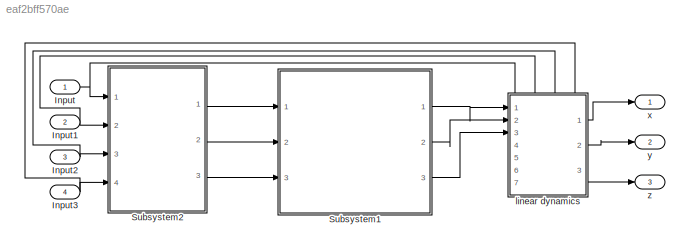
MODEL slx_eaf2bff570ae
KIND model
CONFIG AbsTol = auto
CONFIG EnableMultiTasking = off
CONFIG FixedStep = auto
CONFIG MaxStep = auto
CONFIG MinStep = auto
CONFIG RelTol = 1e-3
CONFIG SampleTimeConstraint = Unconstrained
CONFIG SolverName = VariableStepAuto
CONFIG StartTime = 0.0
CONFIG StopTime = 10.0
BLOCK [Inport] Input
BLOCK [Inport] Input1
  Port = 2
BLOCK [Inport] Input2
  Port = 3
BLOCK [Inport] Input3
  Port = 4
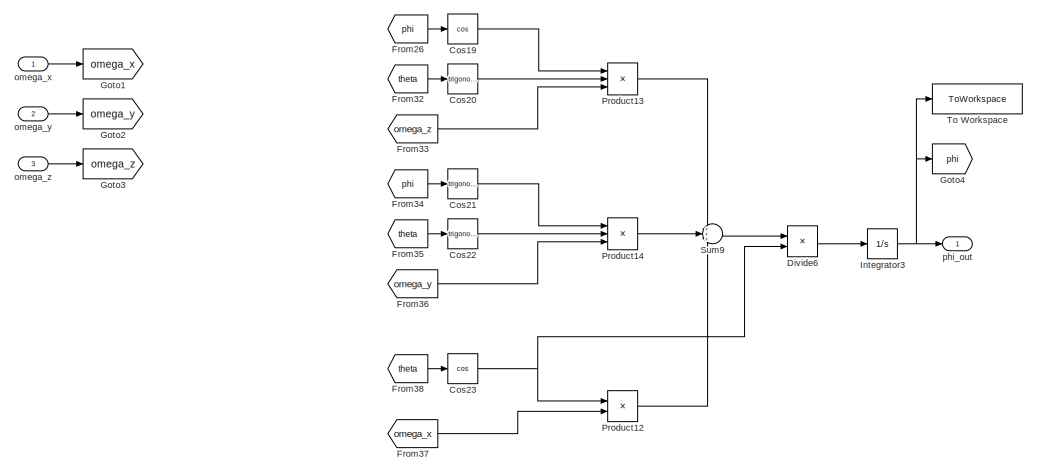
[diagram: Subsystem1 - part 1/2, full width, top band]
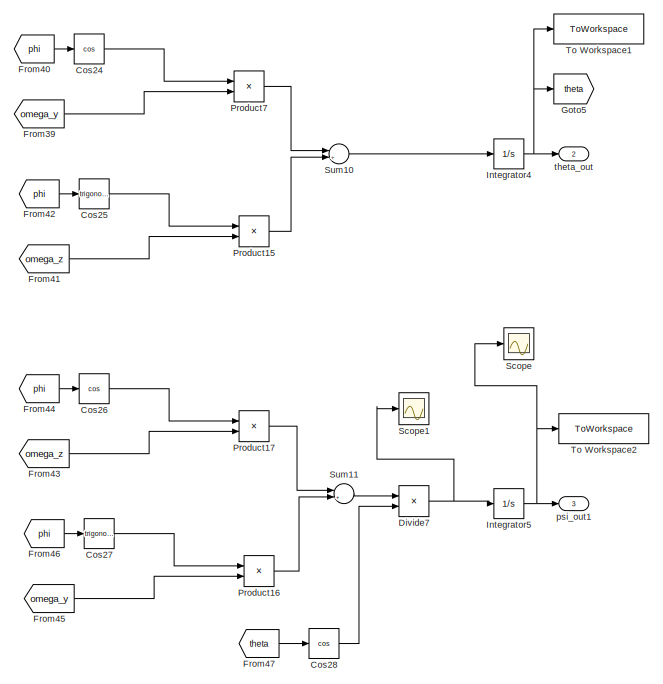
[diagram: Subsystem1 - part 2/2, bottom right region]
BLOCK [SubSystem] Subsystem1
  Ports = [3, 3]
  RequestExecContextInheritance = off
BLOCK [Trigonometry] Subsystem1/Cos19
  Operator = cos
  Ports = [1, 1]
BLOCK [Trigonometry] Subsystem1/Cos20
  Ports = [1, 1]
BLOCK [Trigonometry] Subsystem1/Cos21
  Ports = [1, 1]
BLOCK [Trigonometry] Subsystem1/Cos22
  Ports = [1, 1]
BLOCK [Trigonometry] Subsystem1/Cos23
  Operator = cos
  Ports = [1, 1]
BLOCK [Trigonometry] Subsystem1/Cos24
  Operator = cos
  Ports = [1, 1]
BLOCK [Trigonometry] Subsystem1/Cos25
  Ports = [1, 1]
BLOCK [Trigonometry] Subsystem1/Cos26
  Operator = cos
  Ports = [1, 1]
BLOCK [Trigonometry] Subsystem1/Cos27
  Ports = [1, 1]
BLOCK [Trigonometry] Subsystem1/Cos28
  Operator = cos
  Ports = [1, 1]
BLOCK [Product] Subsystem1/Divide6
  Inputs = */
  Ports = [2, 1]
BLOCK [Product] Subsystem1/Divide7
  Inputs = */
  Ports = [2, 1]
BLOCK [From] Subsystem1/From26
  GotoTag = phi
BLOCK [From] Subsystem1/From32
  GotoTag = theta
BLOCK [From] Subsystem1/From33
  GotoTag = omega_z
BLOCK [From] Subsystem1/From34
  GotoTag = phi
BLOCK [From] Subsystem1/From35
  GotoTag = theta
BLOCK [From] Subsystem1/From36
  GotoTag = omega_y
BLOCK [From] Subsystem1/From37
  GotoTag = omega_x
BLOCK [From] Subsystem1/From38
  GotoTag = theta
BLOCK [From] Subsystem1/From39
  GotoTag = omega_y
BLOCK [From] Subsystem1/From40
  GotoTag = phi
BLOCK [From] Subsystem1/From41
  GotoTag = omega_z
BLOCK [From] Subsystem1/From42
  GotoTag = phi
BLOCK [From] Subsystem1/From43
  GotoTag = omega_z
BLOCK [From] Subsystem1/From44
  GotoTag = phi
BLOCK [From] Subsystem1/From45
  GotoTag = omega_y
BLOCK [From] Subsystem1/From46
  GotoTag = phi
BLOCK [From] Subsystem1/From47
  GotoTag = theta
BLOCK [Goto] Subsystem1/Goto1
  GotoTag = omega_x
BLOCK [Goto] Subsystem1/Goto2
  GotoTag = omega_y
BLOCK [Goto] Subsystem1/Goto3
  GotoTag = omega_z
BLOCK [Goto] Subsystem1/Goto4
  GotoTag = phi
BLOCK [Goto] Subsystem1/Goto5
  GotoTag = theta
BLOCK [Integrator] Subsystem1/Integrator3
  Ports = [1, 1]
BLOCK [Integrator] Subsystem1/Integrator4
  Ports = [1, 1]
BLOCK [Integrator] Subsystem1/Integrator5
  Ports = [1, 1]
BLOCK [Product] Subsystem1/Product12
  Ports = [2, 1]
BLOCK [Product] Subsystem1/Product13
  Inputs = 3
  Ports = [3, 1]
BLOCK [Product] Subsystem1/Product14
  Inputs = 3
  Ports = [3, 1]
BLOCK [Product] Subsystem1/Product15
  Ports = [2, 1]
BLOCK [Product] Subsystem1/Product16
  Ports = [2, 1]
BLOCK [Product] Subsystem1/Product17
  Ports = [2, 1]
BLOCK [Product] Subsystem1/Product7
  Ports = [2, 1]
BLOCK [Scope] Subsystem1/Scope
  Floating = off
  NumInputPorts = 1
  Ports = [1]
  ScopeSpecificationString = Simulink.scopes.TimeScopeBlockCfg('CurrentConfiguration', extmgr.ConfigurationSet(extmgr.Configuration('Core','General UI',true),extmgr.Configuration('Core','Source UI',true),extmgr.Configuration('Sources','WiredSimulink',true,'DataLoggingVariableName','ScopeData9'),extmgr.Configuration('Visuals','Time Domain',true,'SerializedDisplays',{struct('MinYLimReal','-124842418426.45071','MaxYLimReal','112...<+1460ch>
BLOCK [Scope] Subsystem1/Scope1
  Floating = off
  NumInputPorts = 1
  Ports = [1]
  ScopeSpecificationString = Simulink.scopes.TimeScopeBlockCfg('CurrentConfiguration', extmgr.ConfigurationSet(extmgr.Configuration('Core','General UI',true),extmgr.Configuration('Core','Source UI',true),extmgr.Configuration('Sources','WiredSimulink',true,'DataLoggingVariableName','ScopeData10'),extmgr.Configuration('Visuals','Time Domain',true,'SerializedDisplays',{struct('MinYLimReal','-24984236873.12164','MaxYLimReal','224...<+1449ch>
BLOCK [Sum] Subsystem1/Sum10
  Inputs = |+-|
  Ports = [2, 1]
BLOCK [Sum] Subsystem1/Sum11
  Inputs = |++|
  Ports = [2, 1]
BLOCK [Sum] Subsystem1/Sum9
  Inputs = +++
  Ports = [3, 1]
BLOCK [ToWorkspace] Subsystem1/To Workspace
  FixptAsFi = on
  MaxDataPoints = inf
  Ports = [1]
  SampleTime = -1
  SaveFormat = Timeseries
  VariableName = phi_roll
BLOCK [ToWorkspace] Subsystem1/To Workspace1
  FixptAsFi = on
  MaxDataPoints = inf
  Ports = [1]
  SampleTime = -1
  SaveFormat = Timeseries
  VariableName = theta_pitch
BLOCK [ToWorkspace] Subsystem1/To Workspace2
  FixptAsFi = on
  MaxDataPoints = inf
  Ports = [1]
  SampleTime = -1
  SaveFormat = Timeseries
  VariableName = psi_yaw
BLOCK [Inport] Subsystem1/omega_x
BLOCK [Inport] Subsystem1/omega_y
  Port = 2
BLOCK [Inport] Subsystem1/omega_z
  Port = 3
BLOCK [Outport] Subsystem1/phi_out
BLOCK [Outport] Subsystem1/psi_out1
  Port = 3
BLOCK [Outport] Subsystem1/theta_out
  Port = 2
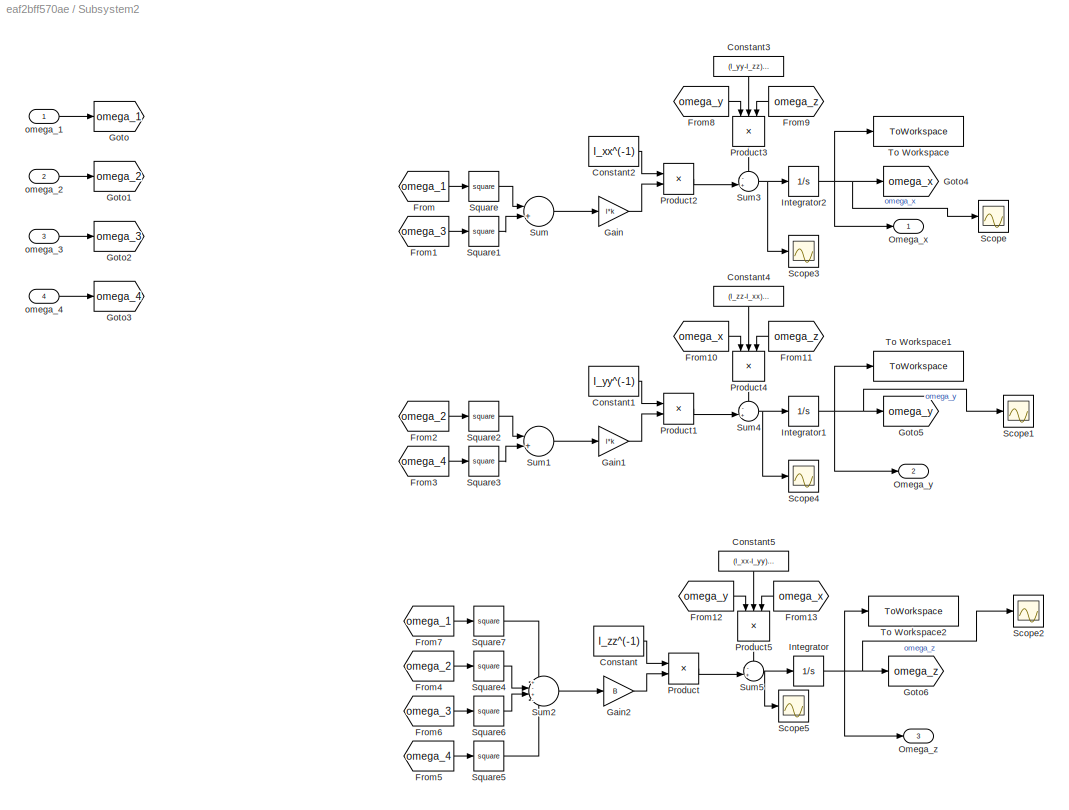
BLOCK [SubSystem] Subsystem2
  Ports = [4, 3]
  RequestExecContextInheritance = off
BLOCK [Constant] Subsystem2/Constant
  Value = I_zz^(-1)
BLOCK [Constant] Subsystem2/Constant1
  Value = I_yy^(-1)
BLOCK [Constant] Subsystem2/Constant2
  Value = I_xx^(-1)
BLOCK [Constant] Subsystem2/Constant3
  NameLocation = left
  Value = (I_yy-I_zz)/I_xx
BLOCK [Constant] Subsystem2/Constant4
  NameLocation = left
  Value = (I_zz-I_xx)/I_yy
BLOCK [Constant] Subsystem2/Constant5
  NameLocation = left
  Value = (I_xx-I_yy)/I_zz
BLOCK [From] Subsystem2/From
  GotoTag = omega_1
BLOCK [From] Subsystem2/From1
  GotoTag = omega_3
BLOCK [From] Subsystem2/From10
  GotoTag = omega_x
BLOCK [From] Subsystem2/From11
  GotoTag = omega_z
  NameLocation = top
BLOCK [From] Subsystem2/From12
  GotoTag = omega_y
BLOCK [From] Subsystem2/From13
  GotoTag = omega_x
  NameLocation = top
BLOCK [From] Subsystem2/From2
  GotoTag = omega_2
BLOCK [From] Subsystem2/From3
  GotoTag = omega_4
BLOCK [From] Subsystem2/From4
  GotoTag = omega_2
BLOCK [From] Subsystem2/From5
  GotoTag = omega_4
BLOCK [From] Subsystem2/From6
  GotoTag = omega_3
BLOCK [From] Subsystem2/From7
  GotoTag = omega_1
BLOCK [From] Subsystem2/From8
  GotoTag = omega_y
BLOCK [From] Subsystem2/From9
  GotoTag = omega_z
  NameLocation = top
BLOCK [Gain] Subsystem2/Gain
  Gain = l*k
BLOCK [Gain] Subsystem2/Gain1
  Gain = l*k
BLOCK [Gain] Subsystem2/Gain2
  Gain = B
BLOCK [Goto] Subsystem2/Goto
  GotoTag = omega_1
BLOCK [Goto] Subsystem2/Goto1
  GotoTag = omega_2
BLOCK [Goto] Subsystem2/Goto2
  GotoTag = omega_3
BLOCK [Goto] Subsystem2/Goto3
  GotoTag = omega_4
BLOCK [Goto] Subsystem2/Goto4
  GotoTag = omega_x
BLOCK [Goto] Subsystem2/Goto5
  GotoTag = omega_y
BLOCK [Goto] Subsystem2/Goto6
  GotoTag = omega_z
BLOCK [Integrator] Subsystem2/Integrator
  Ports = [1, 1]
BLOCK [Integrator] Subsystem2/Integrator1
  Ports = [1, 1]
BLOCK [Integrator] Subsystem2/Integrator2
  Ports = [1, 1]
BLOCK [Outport] Subsystem2/Omega_x
BLOCK [Outport] Subsystem2/Omega_y
  Port = 2
BLOCK [Outport] Subsystem2/Omega_z
  Port = 3
BLOCK [Product] Subsystem2/Product
  Ports = [2, 1]
BLOCK [Product] Subsystem2/Product1
  Ports = [2, 1]
BLOCK [Product] Subsystem2/Product2
  Ports = [2, 1]
BLOCK [Product] Subsystem2/Product3
  Inputs = 3
  NameLocation = left
  Ports = [3, 1]
BLOCK [Product] Subsystem2/Product4
  Inputs = 3
  NameLocation = left
  Ports = [3, 1]
BLOCK [Product] Subsystem2/Product5
  Inputs = 3
  NameLocation = left
  Ports = [3, 1]
BLOCK [Scope] Subsystem2/Scope
  Floating = off
  NumInputPorts = 1
  Ports = [1]
  ScopeSpecificationString = Simulink.scopes.TimeScopeBlockCfg('CurrentConfiguration', extmgr.ConfigurationSet(extmgr.Configuration('Core','General UI',true),extmgr.Configuration('Core','Source UI',true),extmgr.Configuration('Sources','WiredSimulink',true,'DataLoggingVariableName','ScopeData3'),extmgr.Configuration('Visuals','Time Domain',true),extmgr.Configuration('Tools','Plot Navigation',true),extmgr.Configuration('Tools',...<+40ch>
BLOCK [Scope] Subsystem2/Scope1
  Floating = off
  NumInputPorts = 1
  Ports = [1]
  ScopeSpecificationString = Simulink.scopes.TimeScopeBlockCfg('CurrentConfiguration', extmgr.ConfigurationSet(extmgr.Configuration('Core','General UI',true),extmgr.Configuration('Core','Source UI',true),extmgr.Configuration('Sources','WiredSimulink',true,'DataLoggingVariableName','ScopeData4'),extmgr.Configuration('Visuals','Time Domain',true),extmgr.Configuration('Tools','Plot Navigation',true),extmgr.Configuration('Tools',...<+40ch>
BLOCK [Scope] Subsystem2/Scope2
  Floating = off
  NumInputPorts = 1
  Ports = [1]
  ScopeSpecificationString = Simulink.scopes.TimeScopeBlockCfg('CurrentConfiguration', extmgr.ConfigurationSet(extmgr.Configuration('Core','General UI',true),extmgr.Configuration('Core','Source UI',true),extmgr.Configuration('Sources','WiredSimulink',true,'DataLoggingVariableName','ScopeData5'),extmgr.Configuration('Visuals','Time Domain',true,'SerializedDisplays',{struct('MinYLimReal','-24999999999.99994','MaxYLimReal','2249...<+1448ch>
BLOCK [Scope] Subsystem2/Scope3
  Floating = off
  NumInputPorts = 1
  Ports = [1]
  ScopeSpecificationString = Simulink.scopes.TimeScopeBlockCfg('CurrentConfiguration', extmgr.ConfigurationSet(extmgr.Configuration('Core','General UI',true),extmgr.Configuration('Core','Source UI',true),extmgr.Configuration('Sources','WiredSimulink',true,'DataLoggingVariableName','ScopeData6'),extmgr.Configuration('Visuals','Time Domain',true,'SerializedDisplays',{struct('MinYLimReal','-1.00000','MaxYLimReal','1.00000','YLab...<+1392ch>
BLOCK [Scope] Subsystem2/Scope4
  Floating = off
  NumInputPorts = 1
  Ports = [1]
  ScopeSpecificationString = Simulink.scopes.TimeScopeBlockCfg('CurrentConfiguration', extmgr.ConfigurationSet(extmgr.Configuration('Core','General UI',true),extmgr.Configuration('Core','Source UI',true),extmgr.Configuration('Sources','WiredSimulink',true,'DataLoggingVariableName','ScopeData7'),extmgr.Configuration('Visuals','Time Domain',true,'SerializedDisplays',{struct('MinYLimReal','-1.00000','MaxYLimReal','1.00000','YLab...<+1363ch>
BLOCK [Scope] Subsystem2/Scope5
  Floating = off
  NumInputPorts = 1
  Ports = [1]
  ScopeSpecificationString = Simulink.scopes.TimeScopeBlockCfg('CurrentConfiguration', extmgr.ConfigurationSet(extmgr.Configuration('Core','General UI',true),extmgr.Configuration('Core','Source UI',true),extmgr.Configuration('Sources','WiredSimulink',true,'DataLoggingVariableName','ScopeData8'),extmgr.Configuration('Visuals','Time Domain',true,'SerializedDisplays',{struct('MinYLimReal','10000000000.00000','MaxYLimReal','30000...<+1441ch>
BLOCK [Math] Subsystem2/Square
  Operator = square
  Ports = [1, 1]
BLOCK [Math] Subsystem2/Square1
  Operator = square
  Ports = [1, 1]
BLOCK [Math] Subsystem2/Square2
  Operator = square
  Ports = [1, 1]
BLOCK [Math] Subsystem2/Square3
  Operator = square
  Ports = [1, 1]
BLOCK [Math] Subsystem2/Square4
  Operator = square
  Ports = [1, 1]
BLOCK [Math] Subsystem2/Square5
  Operator = square
  Ports = [1, 1]
BLOCK [Math] Subsystem2/Square6
  Operator = square
  Ports = [1, 1]
BLOCK [Math] Subsystem2/Square7
  Operator = square
  Ports = [1, 1]
BLOCK [Sum] Subsystem2/Sum
  Inputs = |+|-|
  Ports = [2, 1]
BLOCK [Sum] Subsystem2/Sum1
  Inputs = |+|-|
  Ports = [2, 1]
BLOCK [Sum] Subsystem2/Sum2
  Inputs = +-+-
  Ports = [4, 1]
BLOCK [Sum] Subsystem2/Sum3
  Inputs = -+|
  Ports = [2, 1]
BLOCK [Sum] Subsystem2/Sum4
  Inputs = -+|
  Ports = [2, 1]
BLOCK [Sum] Subsystem2/Sum5
  Inputs = -+|
  Ports = [2, 1]
BLOCK [ToWorkspace] Subsystem2/To Workspace
  FixptAsFi = on
  MaxDataPoints = inf
  Ports = [1]
  SampleTime = -1
  SaveFormat = Timeseries
  VariableName = omegax
BLOCK [ToWorkspace] Subsystem2/To Workspace1
  FixptAsFi = on
  MaxDataPoints = inf
  Ports = [1]
  SampleTime = -1
  SaveFormat = Timeseries
  VariableName = omegay
BLOCK [ToWorkspace] Subsystem2/To Workspace2
  FixptAsFi = on
  MaxDataPoints = inf
  Ports = [1]
  SampleTime = -1
  SaveFormat = Timeseries
  VariableName = omegaz
BLOCK [Inport] Subsystem2/omega_1
BLOCK [Inport] Subsystem2/omega_2
  Port = 2
BLOCK [Inport] Subsystem2/omega_3
  Port = 3
BLOCK [Inport] Subsystem2/omega_4
  Port = 4
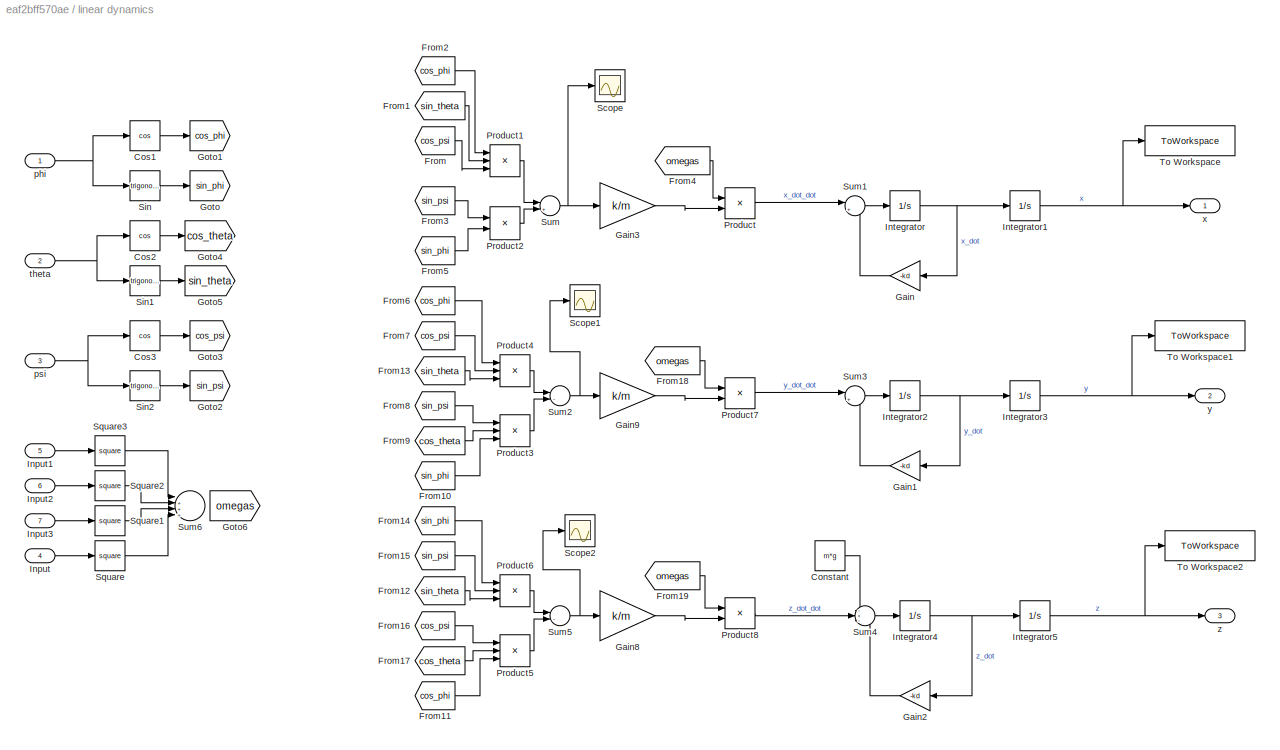
BLOCK [SubSystem] linear dynamics
  PortSchema = {"entries":[{"content":{"sides":[{"content":{"connectorIds":["In1","In2","In3"]},"type":"ConnectorPlacement.EquallySpacedRectSide","uuid":"56efaa7c-52a2-4b92-9bf3-e77850251265"},{"content":{"connectorIds":["Out1","Out2","Out3"],"side":"RIGHT"},"type":"ConnectorPlacement.EquallySpacedRectSide","uuid":"60524467-1949-4cc2-aa81-2e6d1e137057"},{"content":{"connectorIds":["In4","In5","In6","In7"],"side"...<+433ch>
  Ports = [7, 3]
  RequestExecContextInheritance = off
BLOCK [Constant] linear dynamics/Constant
  Value = m*g
BLOCK [Trigonometry] linear dynamics/Cos1
  NameLocation = top
  Operator = cos
  Ports = [1, 1]
BLOCK [Trigonometry] linear dynamics/Cos2
  Operator = cos
  Ports = [1, 1]
BLOCK [Trigonometry] linear dynamics/Cos3
  Operator = cos
  Ports = [1, 1]
BLOCK [From] linear dynamics/From
  GotoTag = cos_psi
BLOCK [From] linear dynamics/From1
  GotoTag = sin_theta
BLOCK [From] linear dynamics/From10
  GotoTag = sin_phi
BLOCK [From] linear dynamics/From11
  GotoTag = cos_phi
BLOCK [From] linear dynamics/From12
  GotoTag = sin_theta
BLOCK [From] linear dynamics/From13
  GotoTag = sin_theta
BLOCK [From] linear dynamics/From14
  GotoTag = sin_phi
BLOCK [From] linear dynamics/From15
  GotoTag = sin_psi
BLOCK [From] linear dynamics/From16
  GotoTag = cos_psi
BLOCK [From] linear dynamics/From17
  GotoTag = cos_theta
BLOCK [From] linear dynamics/From18
  GotoTag = omegas
BLOCK [From] linear dynamics/From19
  GotoTag = omegas
BLOCK [From] linear dynamics/From2
  GotoTag = cos_phi
BLOCK [From] linear dynamics/From3
  GotoTag = sin_psi
BLOCK [From] linear dynamics/From4
  GotoTag = omegas
BLOCK [From] linear dynamics/From5
  GotoTag = sin_phi
BLOCK [From] linear dynamics/From6
  GotoTag = cos_phi
BLOCK [From] linear dynamics/From7
  GotoTag = cos_psi
BLOCK [From] linear dynamics/From8
  GotoTag = sin_psi
BLOCK [From] linear dynamics/From9
  GotoTag = cos_theta
BLOCK [Gain] linear dynamics/Gain
  Gain = -kd
  NameLocation = top
BLOCK [Gain] linear dynamics/Gain1
  Gain = -kd
  NameLocation = top
BLOCK [Gain] linear dynamics/Gain2
  Gain = -kd
  NameLocation = top
BLOCK [Gain] linear dynamics/Gain3
  Gain = k/m
BLOCK [Gain] linear dynamics/Gain8
  Gain = k/m
BLOCK [Gain] linear dynamics/Gain9
  Gain = k/m
BLOCK [Goto] linear dynamics/Goto
  GotoTag = sin_phi
BLOCK [Goto] linear dynamics/Goto1
  GotoTag = cos_phi
BLOCK [Goto] linear dynamics/Goto2
  GotoTag = sin_psi
BLOCK [Goto] linear dynamics/Goto3
  GotoTag = cos_psi
BLOCK [Goto] linear dynamics/Goto4
  GotoTag = cos_theta
BLOCK [Goto] linear dynamics/Goto5
  GotoTag = sin_theta
BLOCK [Goto] linear dynamics/Goto6
  GotoTag = omegas
BLOCK [Inport] linear dynamics/Input
  Port = 4
BLOCK [Inport] linear dynamics/Input1
  Port = 5
BLOCK [Inport] linear dynamics/Input2
  Port = 6
BLOCK [Inport] linear dynamics/Input3
  Port = 7
BLOCK [Integrator] linear dynamics/Integrator
  Ports = [1, 1]
BLOCK [Integrator] linear dynamics/Integrator1
  Ports = [1, 1]
BLOCK [Integrator] linear dynamics/Integrator2
  Ports = [1, 1]
BLOCK [Integrator] linear dynamics/Integrator3
  Ports = [1, 1]
BLOCK [Integrator] linear dynamics/Integrator4
  Ports = [1, 1]
BLOCK [Integrator] linear dynamics/Integrator5
  Ports = [1, 1]
BLOCK [Product] linear dynamics/Product
  Ports = [2, 1]
BLOCK [Product] linear dynamics/Product1
  Inputs = 3
  Ports = [3, 1]
BLOCK [Product] linear dynamics/Product2
  Ports = [2, 1]
BLOCK [Product] linear dynamics/Product3
  Inputs = 3
  Ports = [3, 1]
BLOCK [Product] linear dynamics/Product4
  Inputs = 3
  Ports = [3, 1]
BLOCK [Product] linear dynamics/Product5
  Inputs = 3
  Ports = [3, 1]
BLOCK [Product] linear dynamics/Product6
  Inputs = 3
  Ports = [3, 1]
BLOCK [Product] linear dynamics/Product7
  Ports = [2, 1]
BLOCK [Product] linear dynamics/Product8
  Ports = [2, 1]
BLOCK [Scope] linear dynamics/Scope
  Floating = off
  NumInputPorts = 1
  Ports = [1]
  ScopeSpecificationString = Simulink.scopes.TimeScopeBlockCfg('CurrentConfiguration', extmgr.ConfigurationSet(extmgr.Configuration('Core','General UI',true),extmgr.Configuration('Core','Source UI',true),extmgr.Configuration('Sources','WiredSimulink',true),extmgr.Configuration('Visuals','Time Domain',true,'SerializedDisplays',{struct('MinYLimReal','-1.00000','MaxYLimReal','1.00000','YLabelReal','','MinYLimMag','0.00000','MaxY...<+1323ch>
BLOCK [Scope] linear dynamics/Scope1
  Floating = off
  NumInputPorts = 1
  Ports = [1]
  ScopeSpecificationString = Simulink.scopes.TimeScopeBlockCfg('CurrentConfiguration', extmgr.ConfigurationSet(extmgr.Configuration('Core','General UI',true),extmgr.Configuration('Core','Source UI',true),extmgr.Configuration('Sources','WiredSimulink',true,'DataLoggingVariableName','ScopeData1'),extmgr.Configuration('Visuals','Time Domain',true),extmgr.Configuration('Tools','Plot Navigation',true),extmgr.Configuration('Tools',...<+40ch>
BLOCK [Scope] linear dynamics/Scope2
  Floating = off
  NumInputPorts = 1
  Ports = [1]
  ScopeSpecificationString = Simulink.scopes.TimeScopeBlockCfg('CurrentConfiguration', extmgr.ConfigurationSet(extmgr.Configuration('Core','General UI',true),extmgr.Configuration('Core','Source UI',true),extmgr.Configuration('Sources','WiredSimulink',true,'DataLoggingVariableName','ScopeData2'),extmgr.Configuration('Visuals','Time Domain',true),extmgr.Configuration('Tools','Plot Navigation',true),extmgr.Configuration('Tools',...<+40ch>
BLOCK [Trigonometry] linear dynamics/Sin
  Ports = [1, 1]
BLOCK [Trigonometry] linear dynamics/Sin1
  Ports = [1, 1]
BLOCK [Trigonometry] linear dynamics/Sin2
  Ports = [1, 1]
BLOCK [Math] linear dynamics/Square
  Operator = square
  Ports = [1, 1]
BLOCK [Math] linear dynamics/Square1
  Operator = square
  Ports = [1, 1]
BLOCK [Math] linear dynamics/Square2
  Operator = square
  Ports = [1, 1]
BLOCK [Math] linear dynamics/Square3
  Operator = square
  Ports = [1, 1]
BLOCK [Sum] linear dynamics/Sum
  Inputs = |+-|
  Ports = [2, 1]
BLOCK [Sum] linear dynamics/Sum1
  Inputs = |++
  Ports = [2, 1]
BLOCK [Sum] linear dynamics/Sum2
  Inputs = |-+|
  Ports = [2, 1]
BLOCK [Sum] linear dynamics/Sum3
  Inputs = |++
  Ports = [2, 1]
BLOCK [Sum] linear dynamics/Sum4
  Inputs = -+-
  Ports = [3, 1]
BLOCK [Sum] linear dynamics/Sum5
  Inputs = |-+|
  Ports = [2, 1]
BLOCK [Sum] linear dynamics/Sum6
  Inputs = |++++|
  Ports = [4, 1]
BLOCK [ToWorkspace] linear dynamics/To Workspace
  FixptAsFi = on
  MaxDataPoints = inf
  Ports = [1]
  SampleTime = -1
  SaveFormat = Timeseries
  VariableName = x
BLOCK [ToWorkspace] linear dynamics/To Workspace1
  FixptAsFi = on
  MaxDataPoints = inf
  Ports = [1]
  SampleTime = -1
  SaveFormat = Timeseries
  VariableName = y
BLOCK [ToWorkspace] linear dynamics/To Workspace2
  FixptAsFi = on
  MaxDataPoints = inf
  Ports = [1]
  SampleTime = -1
  SaveFormat = Timeseries
  VariableName = z
BLOCK [Inport] linear dynamics/phi
BLOCK [Inport] linear dynamics/psi
  Port = 3
BLOCK [Inport] linear dynamics/theta
  Port = 2
BLOCK [Outport] linear dynamics/x
BLOCK [Outport] linear dynamics/y
  Port = 2
BLOCK [Outport] linear dynamics/z
  Port = 3
BLOCK [Outport] x
BLOCK [Outport] y
  Port = 2
BLOCK [Outport] z
  Port = 3
NET Input1:1 -> Subsystem2:2, linear dynamics:5
NET Input2:1 -> Subsystem2:3, linear dynamics:6
NET Input3:1 -> Subsystem2:4, linear dynamics:7
NET Input:1 -> Subsystem2:1, linear dynamics:4
LINE Subsystem1/Cos19:1 -> Subsystem1/Product13:1
LINE Subsystem1/Cos20:1 -> Subsystem1/Product13:2
LINE Subsystem1/Cos21:1 -> Subsystem1/Product14:1
LINE Subsystem1/Cos22:1 -> Subsystem1/Product14:2
NET Subsystem1/Cos23:1 -> Subsystem1/Divide6:2, Subsystem1/Product12:1
LINE Subsystem1/Cos24:1 -> Subsystem1/Product7:1
LINE Subsystem1/Cos25:1 -> Subsystem1/Product15:1
LINE Subsystem1/Cos26:1 -> Subsystem1/Product17:1
LINE Subsystem1/Cos27:1 -> Subsystem1/Product16:1
LINE Subsystem1/Cos28:1 -> Subsystem1/Divide7:2
LINE Subsystem1/Divide6:1 -> Subsystem1/Integrator3:1
NET Subsystem1/Divide7:1 -> Subsystem1/Integrator5:1, Subsystem1/Scope1:1
LINE Subsystem1/From26:1 -> Subsystem1/Cos19:1
LINE Subsystem1/From32:1 -> Subsystem1/Cos20:1
LINE Subsystem1/From33:1 -> Subsystem1/Product13:3
LINE Subsystem1/From34:1 -> Subsystem1/Cos21:1
LINE Subsystem1/From35:1 -> Subsystem1/Cos22:1
LINE Subsystem1/From36:1 -> Subsystem1/Product14:3
LINE Subsystem1/From37:1 -> Subsystem1/Product12:2
LINE Subsystem1/From38:1 -> Subsystem1/Cos23:1
LINE Subsystem1/From39:1 -> Subsystem1/Product7:2
LINE Subsystem1/From40:1 -> Subsystem1/Cos24:1
LINE Subsystem1/From41:1 -> Subsystem1/Product15:2
LINE Subsystem1/From42:1 -> Subsystem1/Cos25:1
LINE Subsystem1/From43:1 -> Subsystem1/Product17:2
LINE Subsystem1/From44:1 -> Subsystem1/Cos26:1
LINE Subsystem1/From45:1 -> Subsystem1/Product16:2
LINE Subsystem1/From46:1 -> Subsystem1/Cos27:1
LINE Subsystem1/From47:1 -> Subsystem1/Cos28:1
NET Subsystem1/Integrator3:1 -> Subsystem1/Goto4:1, Subsystem1/To Workspace:1, Subsystem1/phi_out:1
NET Subsystem1/Integrator4:1 -> Subsystem1/Goto5:1, Subsystem1/To Workspace1:1, Subsystem1/theta_out:1
NET Subsystem1/Integrator5:1 -> Subsystem1/Scope:1, Subsystem1/To Workspace2:1, Subsystem1/psi_out1:1
LINE Subsystem1/Product12:1 -> Subsystem1/Sum9:3
LINE Subsystem1/Product13:1 -> Subsystem1/Sum9:1
LINE Subsystem1/Product14:1 -> Subsystem1/Sum9:2
LINE Subsystem1/Product15:1 -> Subsystem1/Sum10:2
LINE Subsystem1/Product16:1 -> Subsystem1/Sum11:2
LINE Subsystem1/Product17:1 -> Subsystem1/Sum11:1
LINE Subsystem1/Product7:1 -> Subsystem1/Sum10:1
LINE Subsystem1/Sum10:1 -> Subsystem1/Integrator4:1
LINE Subsystem1/Sum11:1 -> Subsystem1/Divide7:1
LINE Subsystem1/Sum9:1 -> Subsystem1/Divide6:1
LINE Subsystem1/omega_x:1 -> Subsystem1/Goto1:1
LINE Subsystem1/omega_y:1 -> Subsystem1/Goto2:1
LINE Subsystem1/omega_z:1 -> Subsystem1/Goto3:1
LINE Subsystem1:1 -> linear dynamics:1
LINE Subsystem1:2 -> linear dynamics:2
LINE Subsystem1:3 -> linear dynamics:3
LINE Subsystem2/Constant1:1 -> Subsystem2/Product1:1
LINE Subsystem2/Constant2:1 -> Subsystem2/Product2:1
LINE Subsystem2/Constant3:1 -> Subsystem2/Product3:2
LINE Subsystem2/Constant4:1 -> Subsystem2/Product4:2
LINE Subsystem2/Constant5:1 -> Subsystem2/Product5:2
LINE Subsystem2/Constant:1 -> Subsystem2/Product:1
LINE Subsystem2/From10:1 -> Subsystem2/Product4:1
LINE Subsystem2/From11:1 -> Subsystem2/Product4:3
LINE Subsystem2/From12:1 -> Subsystem2/Product5:1
LINE Subsystem2/From13:1 -> Subsystem2/Product5:3
LINE Subsystem2/From1:1 -> Subsystem2/Square1:1
LINE Subsystem2/From2:1 -> Subsystem2/Square2:1
LINE Subsystem2/From3:1 -> Subsystem2/Square3:1
LINE Subsystem2/From4:1 -> Subsystem2/Square4:1
LINE Subsystem2/From5:1 -> Subsystem2/Square5:1
LINE Subsystem2/From6:1 -> Subsystem2/Square6:1
LINE Subsystem2/From7:1 -> Subsystem2/Square7:1
LINE Subsystem2/From8:1 -> Subsystem2/Product3:1
LINE Subsystem2/From9:1 -> Subsystem2/Product3:3
LINE Subsystem2/From:1 -> Subsystem2/Square:1
LINE Subsystem2/Gain1:1 -> Subsystem2/Product1:2
LINE Subsystem2/Gain2:1 -> Subsystem2/Product:2
LINE Subsystem2/Gain:1 -> Subsystem2/Product2:2
NET Subsystem2/Integrator1:1 -> Subsystem2/Goto5:1, Subsystem2/Omega_y:1, Subsystem2/Scope1:1, Subsystem2/To Workspace1:1
NET Subsystem2/Integrator2:1 -> Subsystem2/Goto4:1, Subsystem2/Omega_x:1, Subsystem2/Scope:1, Subsystem2/To Workspace:1
NET Subsystem2/Integrator:1 -> Subsystem2/Goto6:1, Subsystem2/Omega_z:1, Subsystem2/Scope2:1, Subsystem2/To Workspace2:1
LINE Subsystem2/Product1:1 -> Subsystem2/Sum4:2
LINE Subsystem2/Product2:1 -> Subsystem2/Sum3:2
LINE Subsystem2/Product3:1 -> Subsystem2/Sum3:1
LINE Subsystem2/Product4:1 -> Subsystem2/Sum4:1
LINE Subsystem2/Product5:1 -> Subsystem2/Sum5:1
LINE Subsystem2/Product:1 -> Subsystem2/Sum5:2
LINE Subsystem2/Square1:1 -> Subsystem2/Sum:2
LINE Subsystem2/Square2:1 -> Subsystem2/Sum1:1
LINE Subsystem2/Square3:1 -> Subsystem2/Sum1:2
LINE Subsystem2/Square4:1 -> Subsystem2/Sum2:2
LINE Subsystem2/Square5:1 -> Subsystem2/Sum2:4
LINE Subsystem2/Square6:1 -> Subsystem2/Sum2:3
LINE Subsystem2/Square7:1 -> Subsystem2/Sum2:1
LINE Subsystem2/Square:1 -> Subsystem2/Sum:1
LINE Subsystem2/Sum1:1 -> Subsystem2/Gain1:1
LINE Subsystem2/Sum2:1 -> Subsystem2/Gain2:1
NET Subsystem2/Sum3:1 -> Subsystem2/Integrator2:1, Subsystem2/Scope3:1
NET Subsystem2/Sum4:1 -> Subsystem2/Integrator1:1, Subsystem2/Scope4:1
NET Subsystem2/Sum5:1 -> Subsystem2/Integrator:1, Subsystem2/Scope5:1
LINE Subsystem2/Sum:1 -> Subsystem2/Gain:1
LINE Subsystem2/omega_1:1 -> Subsystem2/Goto:1
LINE Subsystem2/omega_2:1 -> Subsystem2/Goto1:1
LINE Subsystem2/omega_3:1 -> Subsystem2/Goto2:1
LINE Subsystem2/omega_4:1 -> Subsystem2/Goto3:1
LINE Subsystem2:1 -> Subsystem1:1
LINE Subsystem2:2 -> Subsystem1:2
LINE Subsystem2:3 -> Subsystem1:3
LINE linear dynamics/Constant:1 -> linear dynamics/Sum4:1
LINE linear dynamics/Cos1:1 -> linear dynamics/Goto1:1
LINE linear dynamics/Cos2:1 -> linear dynamics/Goto4:1
LINE linear dynamics/Cos3:1 -> linear dynamics/Goto3:1
LINE linear dynamics/From10:1 -> linear dynamics/Product3:3
LINE linear dynamics/From11:1 -> linear dynamics/Product5:3
LINE linear dynamics/From12:1 -> linear dynamics/Product6:3
LINE linear dynamics/From13:1 -> linear dynamics/Product4:3
LINE linear dynamics/From14:1 -> linear dynamics/Product6:1
LINE linear dynamics/From15:1 -> linear dynamics/Product6:2
LINE linear dynamics/From16:1 -> linear dynamics/Product5:1
LINE linear dynamics/From17:1 -> linear dynamics/Product5:2
LINE linear dynamics/From18:1 -> linear dynamics/Product7:1
LINE linear dynamics/From19:1 -> linear dynamics/Product8:1
LINE linear dynamics/From1:1 -> linear dynamics/Product1:2
LINE linear dynamics/From2:1 -> linear dynamics/Product1:1
LINE linear dynamics/From3:1 -> linear dynamics/Product2:1
LINE linear dynamics/From4:1 -> linear dynamics/Product:1
LINE linear dynamics/From5:1 -> linear dynamics/Product2:2
LINE linear dynamics/From6:1 -> linear dynamics/Product4:1
LINE linear dynamics/From7:1 -> linear dynamics/Product4:2
LINE linear dynamics/From8:1 -> linear dynamics/Product3:1
LINE linear dynamics/From9:1 -> linear dynamics/Product3:2
LINE linear dynamics/From:1 -> linear dynamics/Product1:3
LINE linear dynamics/Gain1:1 -> linear dynamics/Sum3:2
LINE linear dynamics/Gain2:1 -> linear dynamics/Sum4:3
LINE linear dynamics/Gain3:1 -> linear dynamics/Product:2
LINE linear dynamics/Gain8:1 -> linear dynamics/Product8:2
LINE linear dynamics/Gain9:1 -> linear dynamics/Product7:2
LINE linear dynamics/Gain:1 -> linear dynamics/Sum1:2
LINE linear dynamics/Input1:1 -> linear dynamics/Square3:1
LINE linear dynamics/Input2:1 -> linear dynamics/Square2:1
LINE linear dynamics/Input3:1 -> linear dynamics/Square1:1
LINE linear dynamics/Input:1 -> linear dynamics/Square:1
NET linear dynamics/Integrator1:1 -> linear dynamics/To Workspace:1, linear dynamics/x:1
NET linear dynamics/Integrator2:1 -> linear dynamics/Gain1:1, linear dynamics/Integrator3:1
NET linear dynamics/Integrator3:1 -> linear dynamics/To Workspace1:1, linear dynamics/y:1
NET linear dynamics/Integrator4:1 -> linear dynamics/Gain2:1, linear dynamics/Integrator5:1
NET linear dynamics/Integrator5:1 -> linear dynamics/To Workspace2:1, linear dynamics/z:1
NET linear dynamics/Integrator:1 -> linear dynamics/Gain:1, linear dynamics/Integrator1:1
LINE linear dynamics/Product1:1 -> linear dynamics/Sum:1
LINE linear dynamics/Product2:1 -> linear dynamics/Sum:2
LINE linear dynamics/Product3:1 -> linear dynamics/Sum2:2
LINE linear dynamics/Product4:1 -> linear dynamics/Sum2:1
LINE linear dynamics/Product5:1 -> linear dynamics/Sum5:2
LINE linear dynamics/Product6:1 -> linear dynamics/Sum5:1
LINE linear dynamics/Product7:1 -> linear dynamics/Sum3:1
LINE linear dynamics/Product8:1 -> linear dynamics/Sum4:2
LINE linear dynamics/Product:1 -> linear dynamics/Sum1:1
LINE linear dynamics/Sin1:1 -> linear dynamics/Goto5:1
LINE linear dynamics/Sin2:1 -> linear dynamics/Goto2:1
LINE linear dynamics/Sin:1 -> linear dynamics/Goto:1
LINE linear dynamics/Square1:1 -> linear dynamics/Sum6:3
LINE linear dynamics/Square2:1 -> linear dynamics/Sum6:2
LINE linear dynamics/Square3:1 -> linear dynamics/Sum6:1
LINE linear dynamics/Square:1 -> linear dynamics/Sum6:4
LINE linear dynamics/Sum1:1 -> linear dynamics/Integrator:1
NET linear dynamics/Sum2:1 -> linear dynamics/Gain9:1, linear dynamics/Scope1:1
LINE linear dynamics/Sum3:1 -> linear dynamics/Integrator2:1
LINE linear dynamics/Sum4:1 -> linear dynamics/Integrator4:1
NET linear dynamics/Sum5:1 -> linear dynamics/Gain8:1, linear dynamics/Scope2:1
NET linear dynamics/Sum:1 -> linear dynamics/Gain3:1, linear dynamics/Scope:1
NET linear dynamics/phi:1 -> linear dynamics/Cos1:1, linear dynamics/Sin:1
NET linear dynamics/psi:1 -> linear dynamics/Cos3:1, linear dynamics/Sin2:1
NET linear dynamics/theta:1 -> linear dynamics/Cos2:1, linear dynamics/Sin1:1
LINE linear dynamics:1 -> x:1
LINE linear dynamics:2 -> y:1
LINE linear dynamics:3 -> z:1
note: NET lines group one-source signal fan-out (src -> all destinations, sorted); 1:1 wires keep LINE
